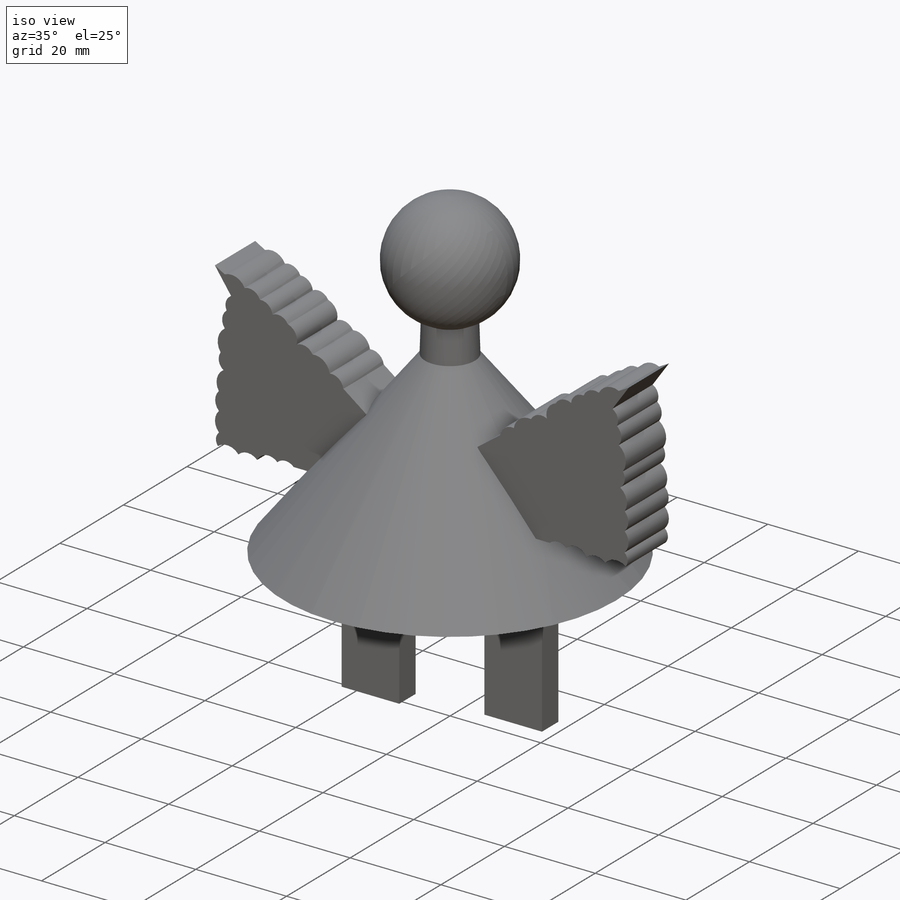
[diagram: iso view]
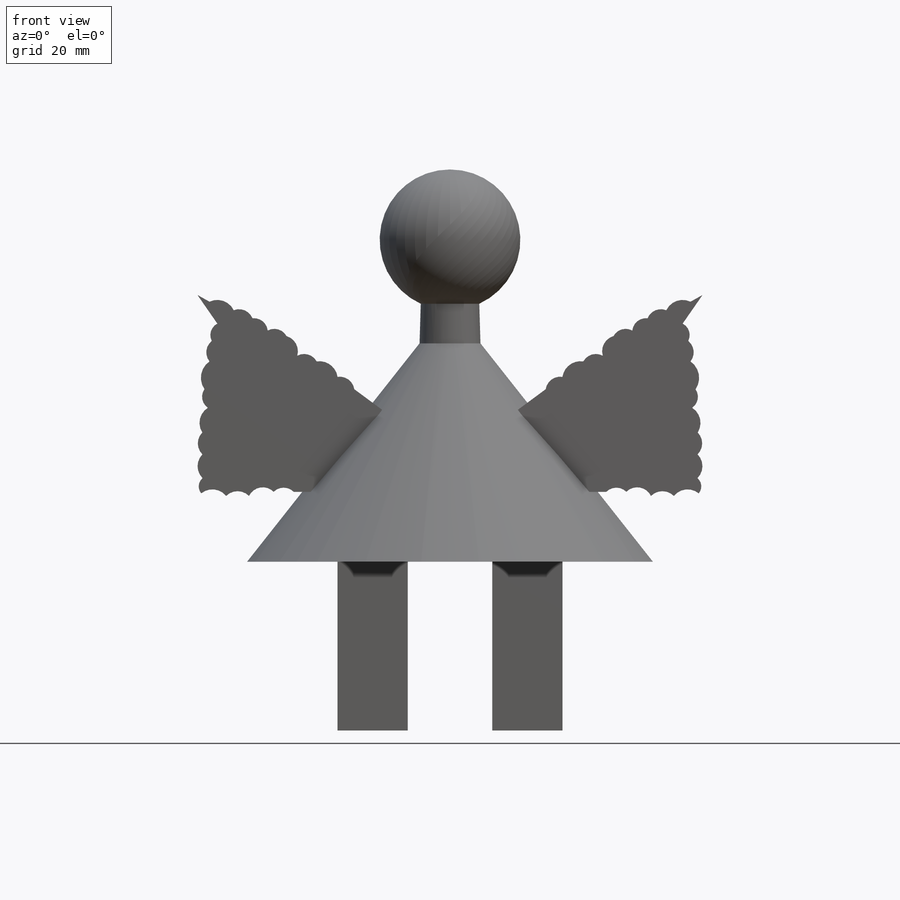
[diagram: front view]
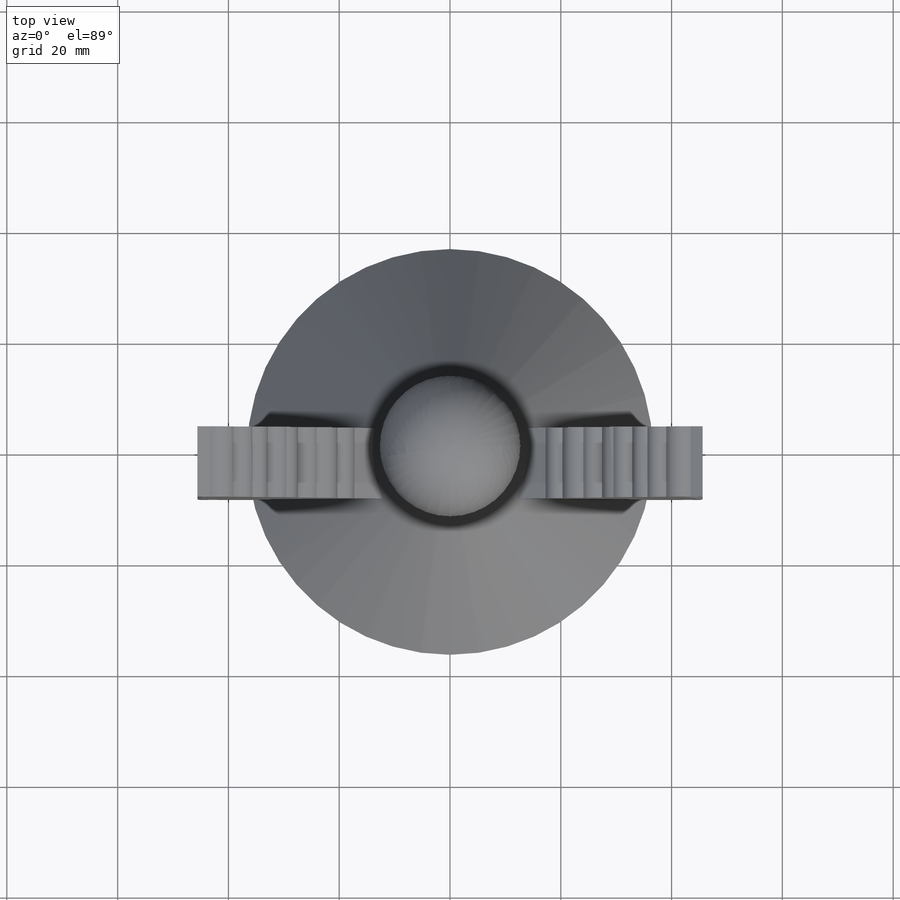
[diagram: top view]
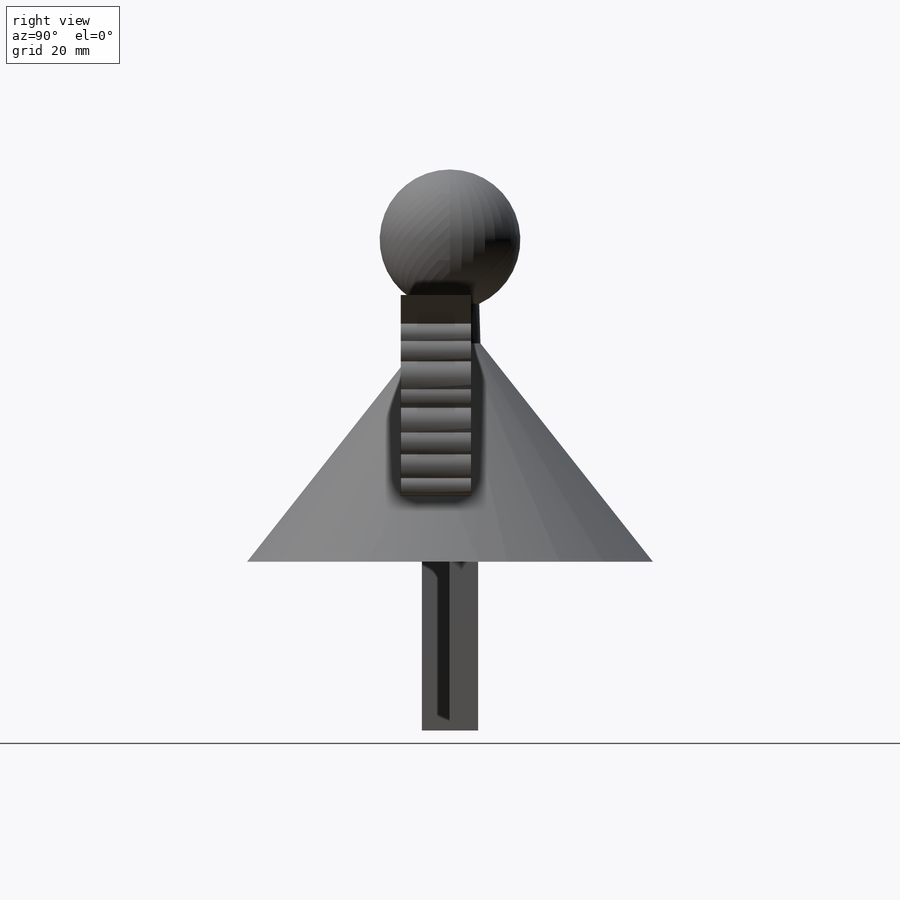
[diagram: right view]
SOLIDWORKS PART (.sldprt)
format: sldprt  version: not decoded by parser v0  size: 279,040 bytes
history: native  units: mm
features: sketch x4, extrude x2, material x1, revolve x1, plane x1 (+13 scaffold rows collapsed)
feature tree (22):
  scaffold x13  (default folders/planes/origin — collapsed)
  material  "Material <not specified>"
  sketch  "Sketch1"  dims[D1=12.7mm D2=12.7mm]
  revolve  "Revolve1"  Angle=360deg
  sketch  "Sketch2"  dims[c1.D8=~73.262725mm c1.D1=12.7mm c1.D2=12.7mm c1.D3=7.62mm c1.D4=7.62mm c1.D5=~5.158073mm c1.D6=~5.158073mm c1.D7=5.08mm c2.D8=5.08mm c2.D9=~0.078073mm c3.D8=5.08mm]
  extrude  "Boss-Extrude1"  Depth=30.48mm
  plane  "Plane4"  Offset=2.54mm
  sketch  "Sketch4"
  extrude  "Boss-Extrude2"  Depth=12.7mm
  sketch  "Sketch5"
decode coverage: 5 of 7 modeling features carry decoded parameters
note: ~ marks probable driven/reference dimensions
note: suppression state not decoded; provenance and decode notes live in map.json
